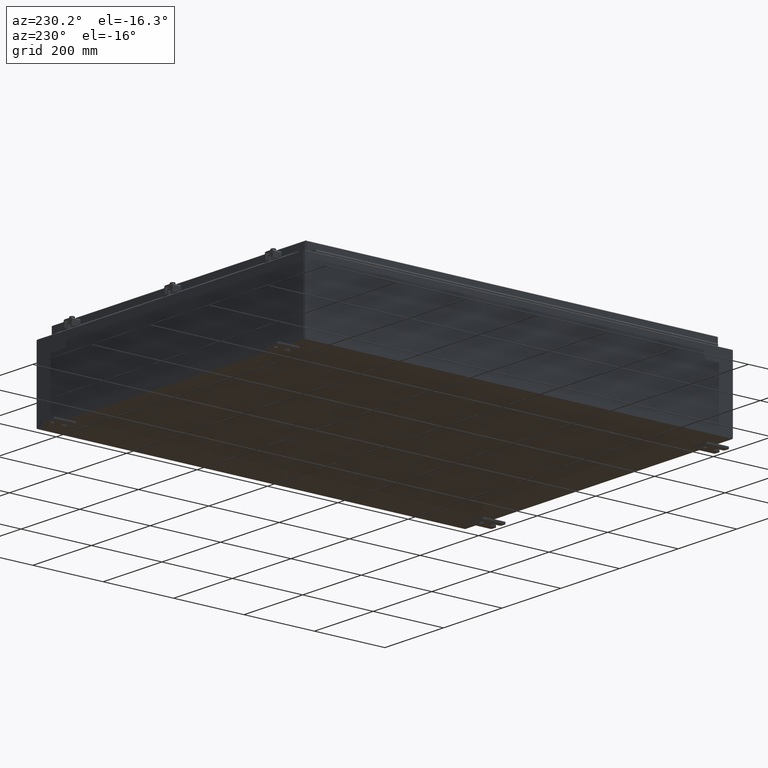
[diagram: clean part render]
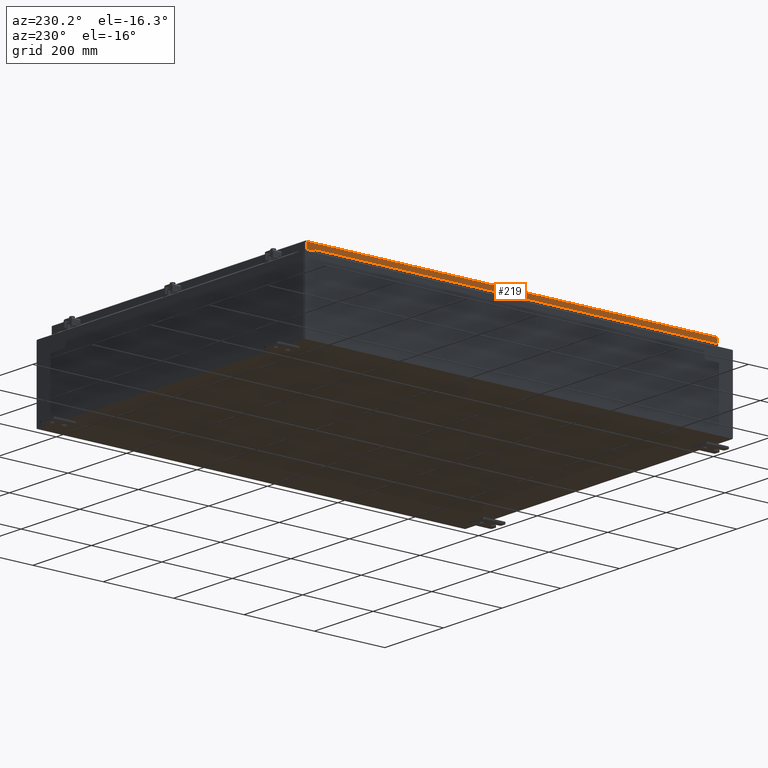
[diagram: same view with one face highlighted and labeled with its STEP entity id]
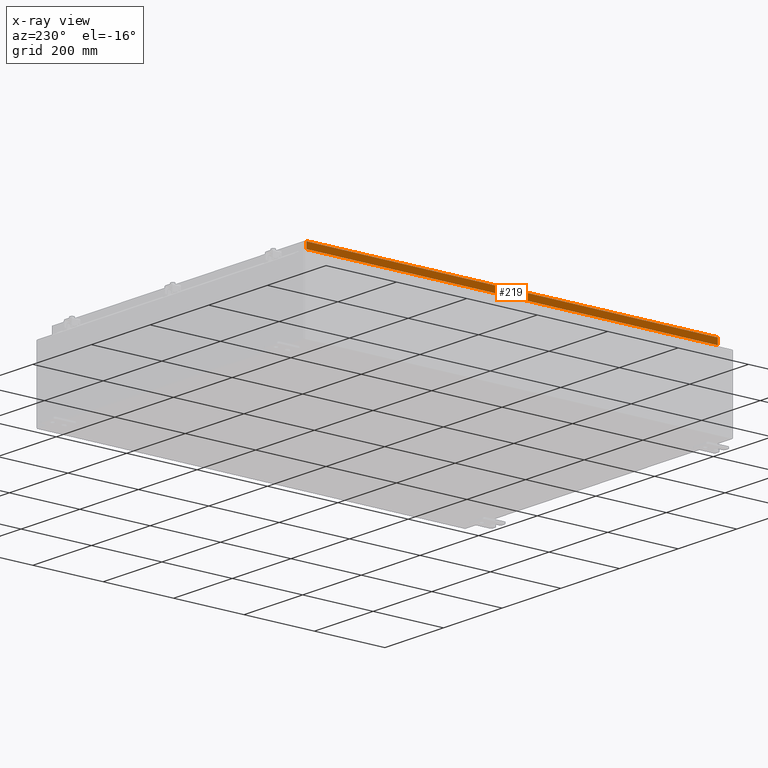
[diagram: x-ray of the same camera — body ghosted, the highlighted face saturated]
A machine part, auxiliary view. The second image highlights one B-rep face of the part: STEP entity #219.
The next image is the same camera in x-ray: the body ghosted, the highlighted face saturated — about 0% of this face is hidden behind the body in this view.
In plain terms, the highlighted planar face has unit normal (1, -0, -0).
Its self-contained STEP definition (entity closure, byte-faithful):
#219 = ADVANCED_FACE ( 'NONE', ( #31312 ), #3182, .F. ) ;
#645 = ORIENTED_EDGE ( 'NONE', *, *, #31009, .F. ) ;
#1458 = AXIS2_PLACEMENT_3D ( 'NONE', #52453, #3061, #2769 ) ;
#2769 = DIRECTION ( 'NONE',  ( -3.034122441942816500E-015, 0.0000000000000000000, -1.000000000000000000 ) ) ;
#3061 = DIRECTION ( 'NONE',  ( 1.000000000000000000, -9.463403459476060900E-017, -3.034122441942816500E-015 ) ) ;
#3104 = EDGE_CURVE ( 'NONE', #3179, #24717, #28932, .T. ) ;
#3179 = VERTEX_POINT ( 'NONE', #29874 ) ;
#3182 = PLANE ( 'NONE',  #1458 ) ;
#7425 = EDGE_CURVE ( 'NONE', #29035, #24717, #38169, .T. ) ;
#7776 = LINE ( 'NONE', #20930, #39708 ) ;
#8075 = VECTOR ( 'NONE', #42624, 39.37007874015748100 ) ;
#8859 = DIRECTION ( 'NONE',  ( 9.463403459476099200E-017, 1.000000000000000000, 1.212498568245375300E-016 ) ) ;
#9401 = CARTESIAN_POINT ( 'NONE',  ( -17.07800000000000300, -23.09400000000000100, -0.7949999999999997100 ) ) ;
#9943 = CARTESIAN_POINT ( 'NONE',  ( -17.07800000000000300, -23.00515786437626900, -0.7949999999999996000 ) ) ;
#15364 = CARTESIAN_POINT ( 'NONE',  ( -17.07799999999999900, -23.00515786437626900, -0.08770000000000334500 ) ) ;
#18144 = CARTESIAN_POINT ( 'NONE',  ( -17.07799999999999600, 23.00515786437627600, -0.7949999999999941600 ) ) ;
#20930 = CARTESIAN_POINT ( 'NONE',  ( -17.07799999999999900, -23.00515786437627200, -0.07469999999999976700 ) ) ;
#24717 = VERTEX_POINT ( 'NONE', #18144 ) ;
#25063 = DIRECTION ( 'NONE',  ( -3.034122441942816100E-015, 6.982962677686267500E-015, -1.000000000000000000 ) ) ;
#28668 = ORIENTED_EDGE ( 'NONE', *, *, #48650, .F. ) ;
#28932 = LINE ( 'NONE', #43391, #8075 ) ;
#29035 = VERTEX_POINT ( 'NONE', #9943 ) ;
#29874 = CARTESIAN_POINT ( 'NONE',  ( -17.07799999999999600, 23.00515786437627200, -0.08770000000000659200 ) ) ;
#30831 = CARTESIAN_POINT ( 'NONE',  ( -17.07799999999999900, -23.09400000000000100, -0.08770000000000004200 ) ) ;
#31009 = EDGE_CURVE ( 'NONE', #48791, #29035, #7776, .T. ) ;
#31312 = FACE_OUTER_BOUND ( 'NONE', #38026, .T. ) ;
#35547 = ORIENTED_EDGE ( 'NONE', *, *, #7425, .F. ) ;
#36855 = VECTOR ( 'NONE', #8859, 39.37007874015748100 ) ;
#38026 = EDGE_LOOP ( 'NONE', ( #28668, #41192, #35547, #645 ) ) ;
#38169 = LINE ( 'NONE', #9401, #36855 ) ;
#39224 = DIRECTION ( 'NONE',  ( -9.463403459476019000E-017, -1.000000000000000000, 1.419510518921414800E-016 ) ) ;
#39708 = VECTOR ( 'NONE', #25063, 39.37007874015748100 ) ;
#41192 = ORIENTED_EDGE ( 'NONE', *, *, #3104, .T. ) ;
#42624 = DIRECTION ( 'NONE',  ( -3.034122441942816100E-015, 6.982962677686267500E-015, -1.000000000000000000 ) ) ;
#43391 = CARTESIAN_POINT ( 'NONE',  ( -17.07799999999999600, 23.00515786437627200, 2.127217154807312100E-013 ) ) ;
#48650 = EDGE_CURVE ( 'NONE', #3179, #48791, #52278, .T. ) ;
#48791 = VERTEX_POINT ( 'NONE', #15364 ) ;
#52278 = LINE ( 'NONE', #30831, #53583 ) ;
#52453 = CARTESIAN_POINT ( 'NONE',  ( -17.07799999999999600, 1.616160042809321200E-015, 5.207755671951099000E-014 ) ) ;
#53583 = VECTOR ( 'NONE', #39224, 39.37007874015748100 ) ;